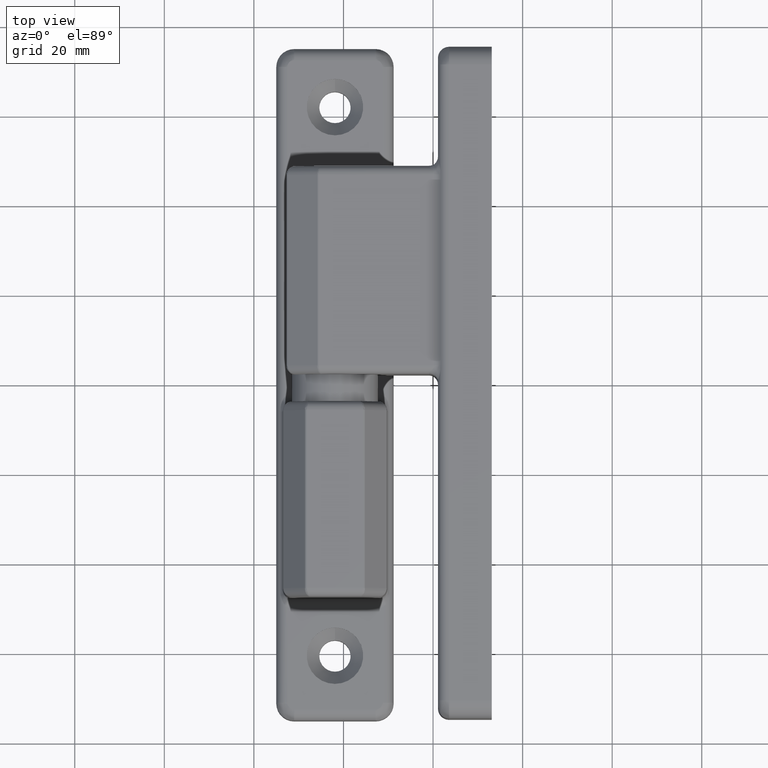
[diagram: clean part render]
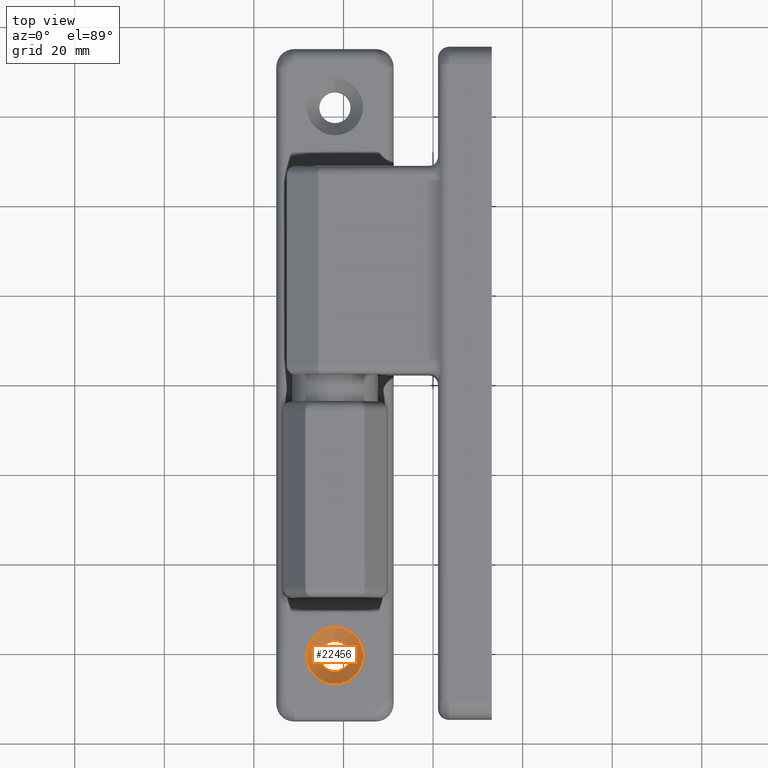
[diagram: same view with one face highlighted and labeled with its STEP entity id]
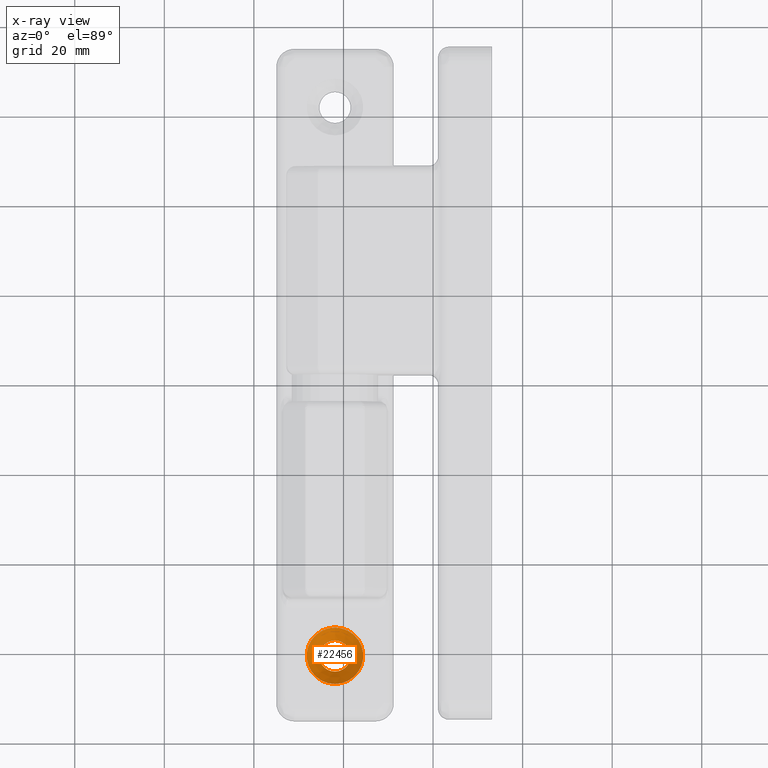
[diagram: x-ray of the same camera — body ghosted, the highlighted face saturated]
A machine part, top view. The second image highlights one B-rep face of the part: STEP entity #22456.
The next image is the same camera in x-ray: the body ghosted, the highlighted face saturated — about 0% of this face is hidden behind the body in this view.
In plain terms, the highlighted conical surface has half-angle 41.532 deg.
Its self-contained STEP definition (entity closure, byte-faithful):
#86=CONICAL_SURFACE('',#23995,5.525,0.724866143615292);
#1346=FACE_BOUND('',#5421,.T.);
#2308=CIRCLE('',#23871,3.5);
#2367=CIRCLE('',#23994,6.3);
#3946=FACE_OUTER_BOUND('',#5420,.T.);
#5420=EDGE_LOOP('',(#14324));
#5421=EDGE_LOOP('',(#14325));
#8688=VERTEX_POINT('',#32180);
#8775=VERTEX_POINT('',#32991);
#10659=EDGE_CURVE('',#8688,#8688,#2308,.T.);
#10805=EDGE_CURVE('',#8775,#8775,#2367,.T.);
#14324=ORIENTED_EDGE('',*,*,#10805,.T.);
#14325=ORIENTED_EDGE('',*,*,#10659,.T.);
#22456=ADVANCED_FACE('',(#3946,#1346),#86,.F.);
#23871=AXIS2_PLACEMENT_3D('',#32181,#26363,#26364);
#23994=AXIS2_PLACEMENT_3D('',#32992,#26672,#26673);
#23995=AXIS2_PLACEMENT_3D('',#32993,#26674,#26675);
#26363=DIRECTION('center_axis',(0.,0.,-1.));
#26364=DIRECTION('ref_axis',(1.,0.,0.));
#26672=DIRECTION('center_axis',(0.,0.,1.));
#26673=DIRECTION('ref_axis',(-6.12323399573676E-17,-1.,0.));
#26674=DIRECTION('center_axis',(0.,0.,1.));
#26675=DIRECTION('ref_axis',(-6.12323399573676E-17,-1.,0.));
#32180=CARTESIAN_POINT('',(238.1,-57.,7.58870967741912));
#32181=CARTESIAN_POINT('Origin',(238.1,-60.5,7.58870967741911));
#32991=CARTESIAN_POINT('',(238.1,-54.2,10.75));
#32992=CARTESIAN_POINT('Origin',(238.1,-60.5,10.75));
#32993=CARTESIAN_POINT('Origin',(238.1,-60.5,9.875));